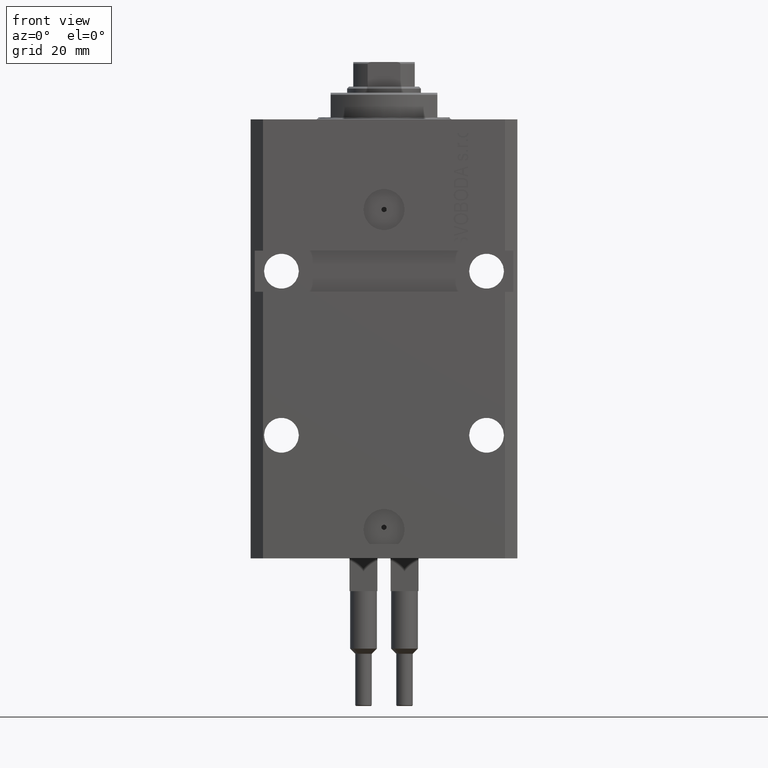
[diagram: clean part render]
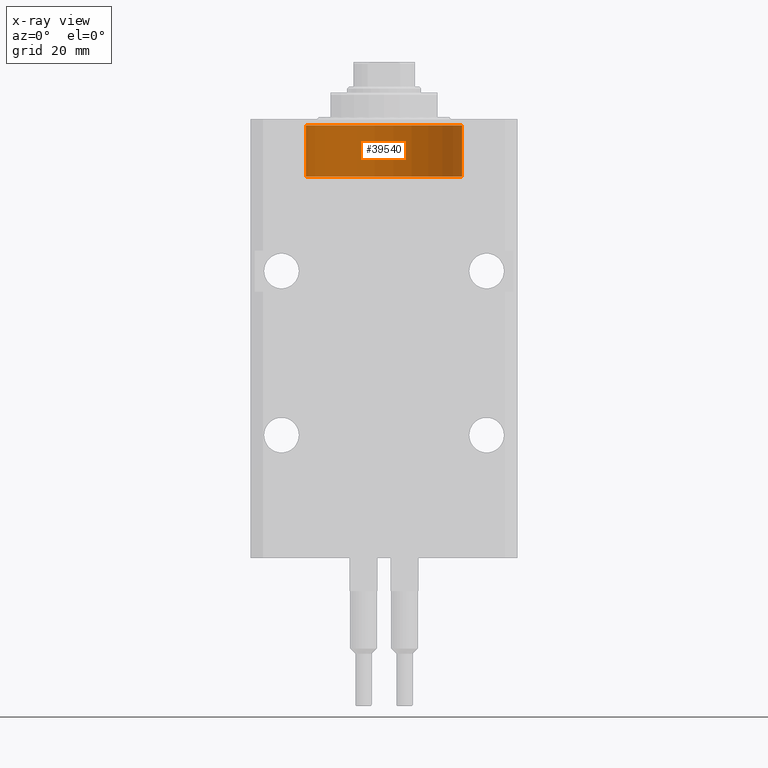
[diagram: x-ray — body ghosted, one internal face saturated and labeled with its STEP entity id]
A machine part, front view, then the same camera in x-ray: the body is ghosted and one INTERNAL B-rep face — a face not visible from any outside direction — is saturated and labeled: STEP entity #39540.
In plain terms, the highlighted cylindrical surface (partial cylindrical patch) has radius 19 mm, axis along (0, -0, 1).
Its self-contained STEP definition (entity closure, byte-faithful):
#1563 = DIRECTION ( 'NONE',  ( 1.000000000000000000, 0.000000000000000000, 0.000000000000000000 ) ) ;
#3376 = ORIENTED_EDGE ( 'NONE', *, *, #26611, .F. ) ;
#3526 = VECTOR ( 'NONE', #10098, 1000.000000000000000 ) ;
#4445 = VECTOR ( 'NONE', #13563, 1000.000000000000000 ) ;
#5004 = VERTEX_POINT ( 'NONE', #37846 ) ;
#5684 = AXIS2_PLACEMENT_3D ( 'NONE', #25130, #9756, #1563 ) ;
#6574 = CIRCLE ( 'NONE', #35907, 19.00000000000000000 ) ;
#7357 = CARTESIAN_POINT ( 'NONE',  ( -19.00000000000000000, 0.000000000000000000, 14.00000000000000000 ) ) ;
#7400 = ORIENTED_EDGE ( 'NONE', *, *, #30248, .T. ) ;
#9251 = VERTEX_POINT ( 'NONE', #45014 ) ;
#9756 = DIRECTION ( 'NONE',  ( -0.000000000000000000, -0.000000000000000000, 1.000000000000000000 ) ) ;
#10098 = DIRECTION ( 'NONE',  ( -0.000000000000000000, -0.000000000000000000, -1.000000000000000000 ) ) ;
#11516 = VERTEX_POINT ( 'NONE', #45686 ) ;
#12860 = DIRECTION ( 'NONE',  ( 0.000000000000000000, 0.000000000000000000, 1.000000000000000000 ) ) ;
#13563 = DIRECTION ( 'NONE',  ( -0.000000000000000000, -0.000000000000000000, -1.000000000000000000 ) ) ;
#14038 = LINE ( 'NONE', #32657, #4445 ) ;
#15307 = DIRECTION ( 'NONE',  ( -0.000000000000000000, -0.000000000000000000, -1.000000000000000000 ) ) ;
#16045 = FACE_OUTER_BOUND ( 'NONE', #22099, .T. ) ;
#16345 = CARTESIAN_POINT ( 'NONE',  ( 0.000000000000000000, 0.000000000000000000, 14.00000000000000000 ) ) ;
#19678 = VERTEX_POINT ( 'NONE', #26184 ) ;
#20053 = EDGE_CURVE ( 'NONE', #11516, #5004, #42242, .T. ) ;
#20494 = EDGE_CURVE ( 'NONE', #19678, #9251, #6574, .T. ) ;
#22099 = EDGE_LOOP ( 'NONE', ( #42250, #7400, #27052, #3376 ) ) ;
#22995 = CYLINDRICAL_SURFACE ( 'NONE', #47295, 19.00000000000000000 ) ;
#25130 = CARTESIAN_POINT ( 'NONE',  ( 0.000000000000000000, 0.000000000000000000, 1.500000000000004885 ) ) ;
#26184 = CARTESIAN_POINT ( 'NONE',  ( 19.00000000000000000, 2.326828918379970970E-15, 14.00000000000000000 ) ) ;
#26611 = EDGE_CURVE ( 'NONE', #9251, #5004, #29938, .T. ) ;
#26717 = DIRECTION ( 'NONE',  ( -1.000000000000000000, 0.000000000000000000, 0.000000000000000000 ) ) ;
#27052 = ORIENTED_EDGE ( 'NONE', *, *, #20053, .T. ) ;
#29938 = LINE ( 'NONE', #7357, #3526 ) ;
#30248 = EDGE_CURVE ( 'NONE', #19678, #11516, #14038, .T. ) ;
#32657 = CARTESIAN_POINT ( 'NONE',  ( 19.00000000000000000, 2.326828918379970970E-15, 14.00000000000000000 ) ) ;
#35907 = AXIS2_PLACEMENT_3D ( 'NONE', #16345, #12860, #38923 ) ;
#37846 = CARTESIAN_POINT ( 'NONE',  ( -19.00000000000000000, 0.000000000000000000, 1.500000000000004885 ) ) ;
#38923 = DIRECTION ( 'NONE',  ( 1.000000000000000000, 0.000000000000000000, 0.000000000000000000 ) ) ;
#39540 = ADVANCED_FACE ( 'NONE', ( #16045 ), #22995, .T. ) ;
#42242 = CIRCLE ( 'NONE', #5684, 19.00000000000000000 ) ;
#42250 = ORIENTED_EDGE ( 'NONE', *, *, #20494, .F. ) ;
#45014 = CARTESIAN_POINT ( 'NONE',  ( -19.00000000000000000, 0.000000000000000000, 14.00000000000000000 ) ) ;
#45686 = CARTESIAN_POINT ( 'NONE',  ( 19.00000000000000000, 2.326828918379970970E-15, 1.500000000000004885 ) ) ;
#46538 = CARTESIAN_POINT ( 'NONE',  ( 0.000000000000000000, 0.000000000000000000, 14.00000000000000000 ) ) ;
#47295 = AXIS2_PLACEMENT_3D ( 'NONE', #46538, #15307, #26717 ) ;